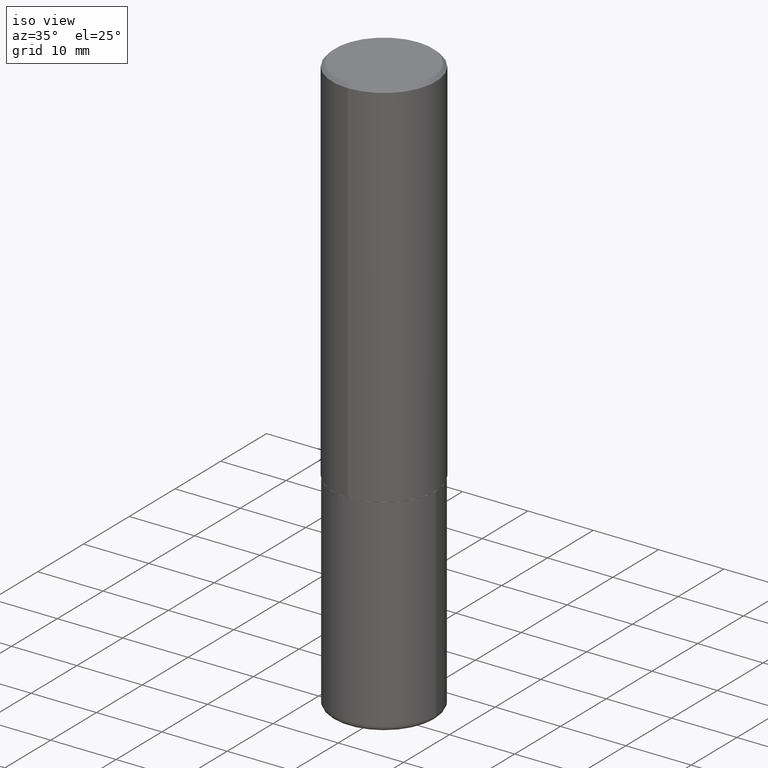
[diagram: clean part render]
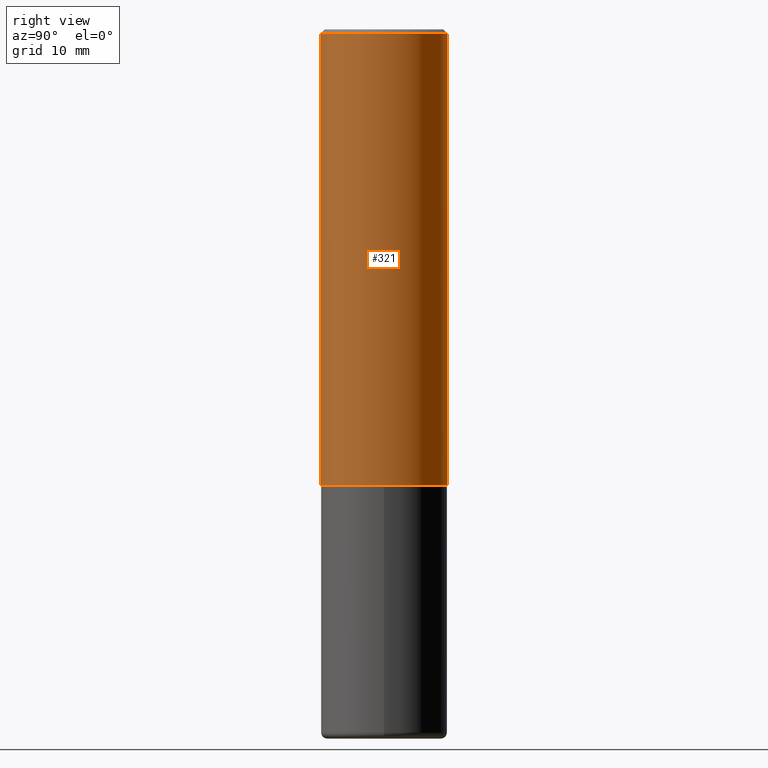
[diagram: tour spotlight — one face highlighted and labeled with its STEP entity id]
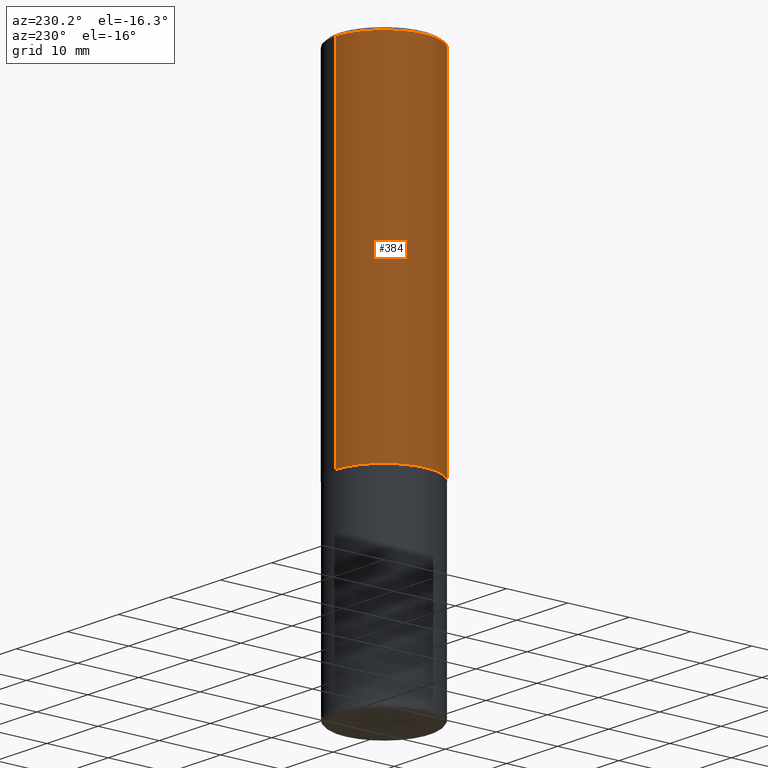
[diagram: tour spotlight — one face highlighted and labeled with its STEP entity id]
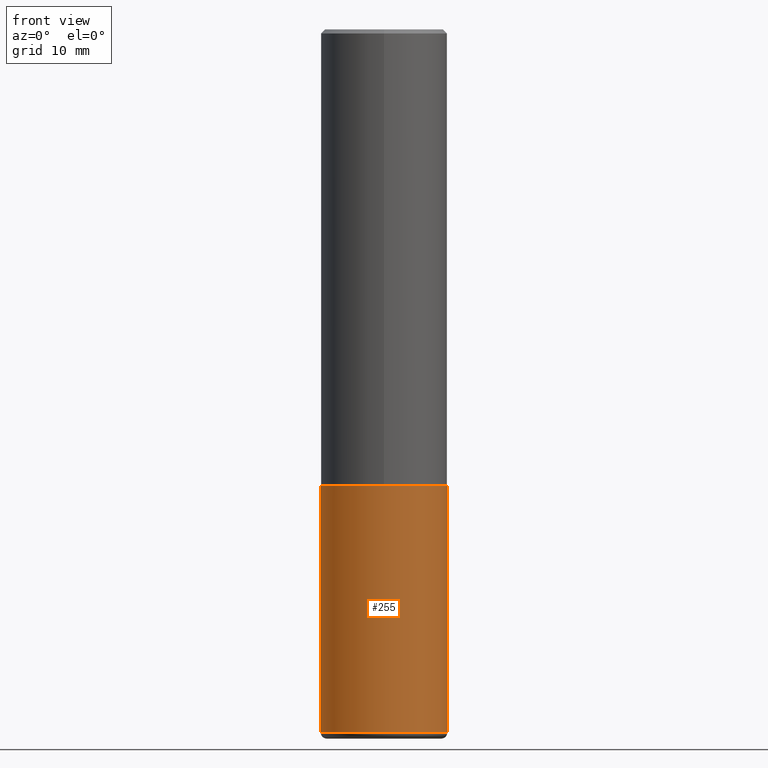
[diagram: tour spotlight — one face highlighted and labeled with its STEP entity id]
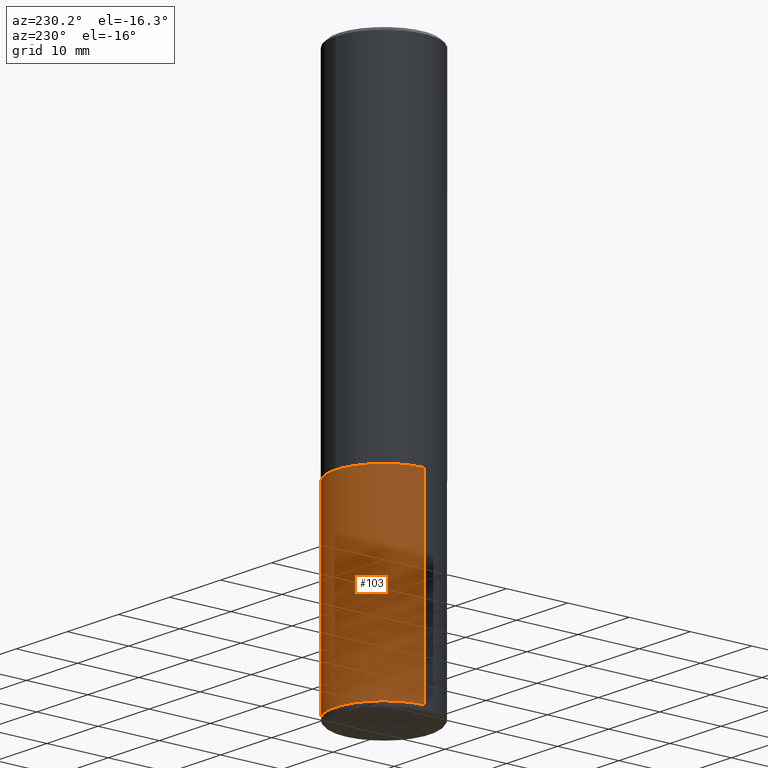
[diagram: tour spotlight — one face highlighted and labeled with its STEP entity id]
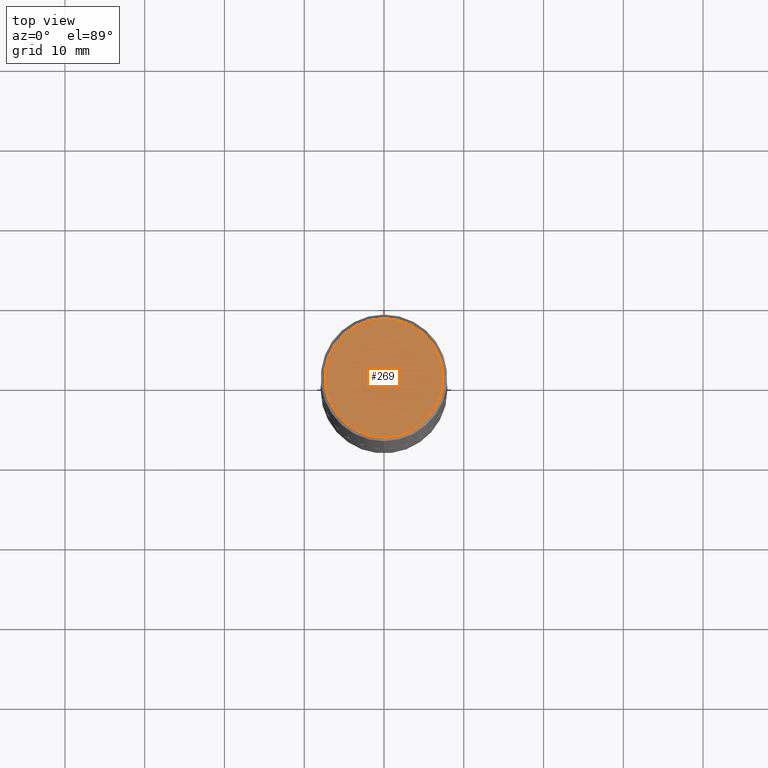
[diagram: tour spotlight — one face highlighted and labeled with its STEP entity id]
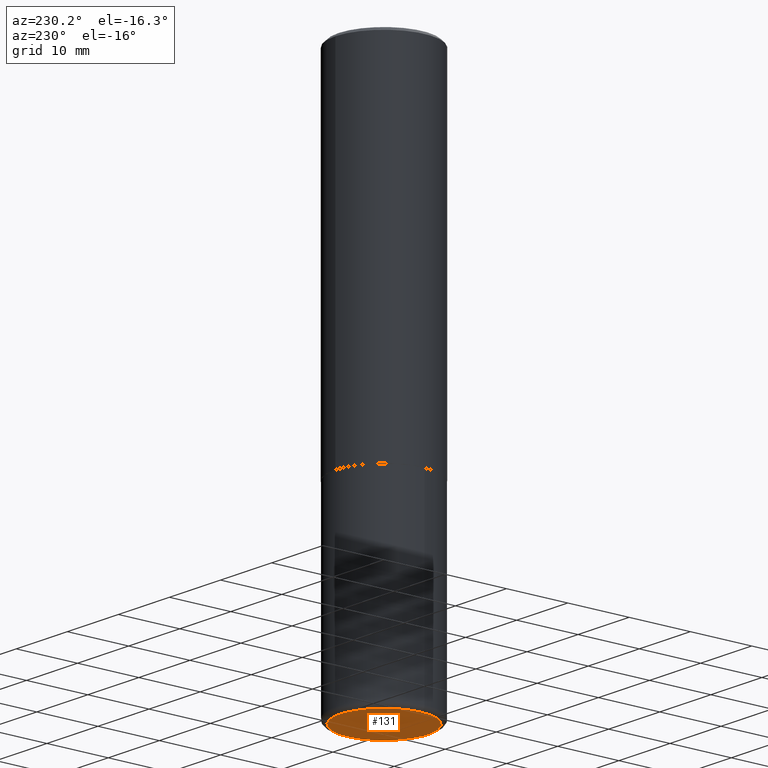
[diagram: tour spotlight — one face highlighted and labeled with its STEP entity id]
A machine part: a face-by-face anatomy tour. The part has 14 B-rep faces; the first image is the clean iso view, then the 6 largest visible faces are spotlighted one at a time (largest first), each with its STEP entity span.

Face 1 — right view, entity #321. In plain terms, the highlighted cylindrical surface (partial cylindrical patch) has radius 7.9375 mm, axis along (-0, 0, 1).
Definition (entity closure, byte-faithful):
#1 = CARTESIAN_POINT ( 'NONE',  ( -2.143905624303602036E-15, -0.3124999999999999445, -0.01999999999999897693 ) ) ;
#12 = VERTEX_POINT ( 'NONE', #168 ) ;
#41 = CIRCLE ( 'NONE', #320, 0.3124999999999998890 ) ;
#59 = CARTESIAN_POINT ( 'NONE',  ( -2.182175836776958741E-15, -0.3125000000000000555, 1.091675675278512284E-15 ) ) ;
#66 = EDGE_CURVE ( 'NONE', #409, #237, #413, .T. ) ;
#78 = ORIENTED_EDGE ( 'NONE', *, *, #66, .F. ) ;
#80 = CARTESIAN_POINT ( 'NONE',  ( -2.182175836776905099E-15, -0.3125000000000081601, -2.248999999999998778 ) ) ;
#81 = CIRCLE ( 'NONE', #313, 0.3125000000000002776 ) ;
#105 = CYLINDRICAL_SURFACE ( 'NONE', #360, 0.3125000000000000555 ) ;
#127 = VERTEX_POINT ( 'NONE', #219 ) ;
#130 = DIRECTION ( 'NONE',  ( -6.982962677686265133E-15, -1.000000000000000000, 3.496765431890258103E-15 ) ) ;
#145 = DIRECTION ( 'NONE',  ( -2.444155435168616212E-29, 3.493362160891238126E-15, 1.000000000000000000 ) ) ;
#163 = DIRECTION ( 'NONE',  ( -2.444155435168616212E-29, 3.493362160891238520E-15, 1.000000000000000000 ) ) ;
#168 = CARTESIAN_POINT ( 'NONE',  ( 2.220446049250341480E-15, 0.3124999999999924505, -2.249000000000000998 ) ) ;
#192 = ORIENTED_EDGE ( 'NONE', *, *, #369, .T. ) ;
#193 = DIRECTION ( 'NONE',  ( -2.444155435168616212E-29, 3.493362160891238520E-15, 1.000000000000000000 ) ) ;
#203 = DIRECTION ( 'NONE',  ( -2.444155435168616212E-29, 3.493362160891238520E-15, 1.000000000000000000 ) ) ;
#219 = CARTESIAN_POINT ( 'NONE',  ( 2.182175836776957558E-15, 0.3124999999999998335, -0.02000000000000116268 ) ) ;
#228 = ORIENTED_EDGE ( 'NONE', *, *, #383, .F. ) ;
#237 = VERTEX_POINT ( 'NONE', #1 ) ;
#273 = FACE_OUTER_BOUND ( 'NONE', #393, .T. ) ;
#283 = DIRECTION ( 'NONE',  ( -2.444155435168616212E-29, 3.493362160891238126E-15, 1.000000000000000000 ) ) ;
#287 = ORIENTED_EDGE ( 'NONE', *, *, #390, .T. ) ;
#295 = CARTESIAN_POINT ( 'NONE',  ( 5.496905573694216767E-29, -7.856571499844395127E-15, -2.248999999999999666 ) ) ;
#312 = CARTESIAN_POINT ( 'NONE',  ( 2.220446049250313081E-15, 0.3125000000000000555, -1.091675675278512284E-15 ) ) ;
#313 = AXIS2_PLACEMENT_3D ( 'NONE', #295, #203, #364 ) ;
#320 = AXIS2_PLACEMENT_3D ( 'NONE', #331, #163, #130 ) ;
#321 = ADVANCED_FACE ( 'NONE', ( #273 ), #105, .T. ) ;
#331 = CARTESIAN_POINT ( 'NONE',  ( 4.888310870337248995E-31, -6.986724321782500903E-17, -0.02000000000000006981 ) ) ;
#348 = VECTOR ( 'NONE', #145, 39.37007874015748143 ) ;
#360 = AXIS2_PLACEMENT_3D ( 'NONE', #371, #193, #398 ) ;
#364 = DIRECTION ( 'NONE',  ( -6.982962677686265922E-15, -1.000000000000000000, 3.496765431890253764E-15 ) ) ;
#365 = VECTOR ( 'NONE', #283, 39.37007874015748143 ) ;
#369 = EDGE_CURVE ( 'NONE', #409, #12, #81, .T. ) ;
#371 = CARTESIAN_POINT ( 'NONE',  ( 0.000000000000000000, 0.000000000000000000, 0.000000000000000000 ) ) ;
#383 = EDGE_CURVE ( 'NONE', #237, #127, #41, .T. ) ;
#390 = EDGE_CURVE ( 'NONE', #12, #127, #411, .T. ) ;
#393 = EDGE_LOOP ( 'NONE', ( #192, #287, #228, #78 ) ) ;
#398 = DIRECTION ( 'NONE',  ( -6.982962677686266711E-15, -1.000000000000000000, 3.493362160891238520E-15 ) ) ;
#409 = VERTEX_POINT ( 'NONE', #80 ) ;
#411 = LINE ( 'NONE', #312, #348 ) ;
#413 = LINE ( 'NONE', #59, #365 ) ;

Face 2 — auxiliary view, entity #384. In plain terms, the highlighted cylindrical surface (partial cylindrical patch) has radius 7.9375 mm, axis along (-0, 0, 1).
Definition (entity closure, byte-faithful):
#1 = CARTESIAN_POINT ( 'NONE',  ( -2.143905624303602036E-15, -0.3124999999999999445, -0.01999999999999897693 ) ) ;
#12 = VERTEX_POINT ( 'NONE', #168 ) ;
#14 = CYLINDRICAL_SURFACE ( 'NONE', #16, 0.3125000000000000555 ) ;
#16 = AXIS2_PLACEMENT_3D ( 'NONE', #133, #143, #279 ) ;
#37 = DIRECTION ( 'NONE',  ( -6.982962677686265922E-15, -1.000000000000000000, 3.496765431890253764E-15 ) ) ;
#59 = CARTESIAN_POINT ( 'NONE',  ( -2.182175836776958741E-15, -0.3125000000000000555, 1.091675675278512284E-15 ) ) ;
#66 = EDGE_CURVE ( 'NONE', #409, #237, #413, .T. ) ;
#70 = CARTESIAN_POINT ( 'NONE',  ( 4.888310870337248995E-31, -6.986724321782500903E-17, -0.02000000000000006981 ) ) ;
#72 = CIRCLE ( 'NONE', #338, 0.3125000000000002776 ) ;
#75 = DIRECTION ( 'NONE',  ( -6.982962677686265133E-15, -1.000000000000000000, 3.496765431890258103E-15 ) ) ;
#80 = CARTESIAN_POINT ( 'NONE',  ( -2.182175836776905099E-15, -0.3125000000000081601, -2.248999999999998778 ) ) ;
#102 = CARTESIAN_POINT ( 'NONE',  ( 5.496905573694216767E-29, -7.856571499844395127E-15, -2.248999999999999666 ) ) ;
#124 = EDGE_LOOP ( 'NONE', ( #160, #161, #318, #292 ) ) ;
#127 = VERTEX_POINT ( 'NONE', #219 ) ;
#133 = CARTESIAN_POINT ( 'NONE',  ( 0.000000000000000000, 0.000000000000000000, 0.000000000000000000 ) ) ;
#143 = DIRECTION ( 'NONE',  ( -2.444155435168616212E-29, 3.493362160891238520E-15, 1.000000000000000000 ) ) ;
#145 = DIRECTION ( 'NONE',  ( -2.444155435168616212E-29, 3.493362160891238126E-15, 1.000000000000000000 ) ) ;
#160 = ORIENTED_EDGE ( 'NONE', *, *, #390, .F. ) ;
#161 = ORIENTED_EDGE ( 'NONE', *, *, #290, .T. ) ;
#165 = DIRECTION ( 'NONE',  ( -2.444155435168616212E-29, 3.493362160891238520E-15, 1.000000000000000000 ) ) ;
#168 = CARTESIAN_POINT ( 'NONE',  ( 2.220446049250341480E-15, 0.3124999999999924505, -2.249000000000000998 ) ) ;
#219 = CARTESIAN_POINT ( 'NONE',  ( 2.182175836776957558E-15, 0.3124999999999998335, -0.02000000000000116268 ) ) ;
#230 = CIRCLE ( 'NONE', #319, 0.3124999999999998890 ) ;
#237 = VERTEX_POINT ( 'NONE', #1 ) ;
#266 = FACE_OUTER_BOUND ( 'NONE', #124, .T. ) ;
#270 = DIRECTION ( 'NONE',  ( -2.444155435168616212E-29, 3.493362160891238520E-15, 1.000000000000000000 ) ) ;
#279 = DIRECTION ( 'NONE',  ( -6.982962677686266711E-15, -1.000000000000000000, 3.493362160891238520E-15 ) ) ;
#283 = DIRECTION ( 'NONE',  ( -2.444155435168616212E-29, 3.493362160891238126E-15, 1.000000000000000000 ) ) ;
#290 = EDGE_CURVE ( 'NONE', #12, #409, #72, .T. ) ;
#292 = ORIENTED_EDGE ( 'NONE', *, *, #298, .F. ) ;
#298 = EDGE_CURVE ( 'NONE', #127, #237, #230, .T. ) ;
#312 = CARTESIAN_POINT ( 'NONE',  ( 2.220446049250313081E-15, 0.3125000000000000555, -1.091675675278512284E-15 ) ) ;
#318 = ORIENTED_EDGE ( 'NONE', *, *, #66, .T. ) ;
#319 = AXIS2_PLACEMENT_3D ( 'NONE', #70, #270, #75 ) ;
#338 = AXIS2_PLACEMENT_3D ( 'NONE', #102, #165, #37 ) ;
#348 = VECTOR ( 'NONE', #145, 39.37007874015748143 ) ;
#365 = VECTOR ( 'NONE', #283, 39.37007874015748143 ) ;
#384 = ADVANCED_FACE ( 'NONE', ( #266 ), #14, .T. ) ;
#390 = EDGE_CURVE ( 'NONE', #12, #127, #411, .T. ) ;
#409 = VERTEX_POINT ( 'NONE', #80 ) ;
#411 = LINE ( 'NONE', #312, #348 ) ;
#413 = LINE ( 'NONE', #59, #365 ) ;

Face 3 — front view, entity #255. In plain terms, the highlighted cylindrical surface (partial cylindrical patch) has radius 7.9375 mm, axis along (-0, 0, 1).
Definition (entity closure, byte-faithful):
#11 = DIRECTION ( 'NONE',  ( -2.445468806185136597E-29, 3.491481338843145583E-15, 1.000000000000000000 ) ) ;
#24 = LINE ( 'NONE', #141, #247 ) ;
#38 = VERTEX_POINT ( 'NONE', #210 ) ;
#47 = EDGE_CURVE ( 'NONE', #52, #232, #24, .T. ) ;
#48 = DIRECTION ( 'NONE',  ( 1.000000000000000000, -6.982962677686269077E-15, 0.000000000000000000 ) ) ;
#52 = VERTEX_POINT ( 'NONE', #281 ) ;
#60 = AXIS2_PLACEMENT_3D ( 'NONE', #73, #199, #48 ) ;
#67 = CIRCLE ( 'NONE', #306, 0.3125000000000000000 ) ;
#73 = CARTESIAN_POINT ( 'NONE',  ( 5.502304813916556222E-29, -7.855833012397076871E-15, -2.249999999999999556 ) ) ;
#88 = CARTESIAN_POINT ( 'NONE',  ( -0.3125000000000000000, 2.220446049250313081E-15, -1.537167215704658232E-29 ) ) ;
#109 = EDGE_LOOP ( 'NONE', ( #137, #359, #225, #169 ) ) ;
#125 = CIRCLE ( 'NONE', #60, 0.3125000000000000000 ) ;
#126 = CARTESIAN_POINT ( 'NONE',  ( 0.000000000000000000, 0.000000000000000000, 0.000000000000000000 ) ) ;
#129 = EDGE_CURVE ( 'NONE', #171, #38, #150, .T. ) ;
#137 = ORIENTED_EDGE ( 'NONE', *, *, #129, .F. ) ;
#141 = CARTESIAN_POINT ( 'NONE',  ( 0.3125000000000000000, -2.182175836776958347E-15, 1.523805242436230075E-29 ) ) ;
#147 = AXIS2_PLACEMENT_3D ( 'NONE', #126, #231, #403 ) ;
#150 = LINE ( 'NONE', #88, #254 ) ;
#169 = ORIENTED_EDGE ( 'NONE', *, *, #375, .F. ) ;
#171 = VERTEX_POINT ( 'NONE', #217 ) ;
#199 = DIRECTION ( 'NONE',  ( -2.445468806185136597E-29, 3.491481338843145583E-15, 1.000000000000000000 ) ) ;
#202 = CARTESIAN_POINT ( 'NONE',  ( 8.485776757462424574E-29, -1.211544024578571439E-14, -3.469999999999999751 ) ) ;
#210 = CARTESIAN_POINT ( 'NONE',  ( -0.3125000000000000000, -7.765190579841083341E-15, -2.249999999999999556 ) ) ;
#217 = CARTESIAN_POINT ( 'NONE',  ( -0.3125000000000001665, -9.894994196535401314E-15, -3.469999999999999751 ) ) ;
#225 = ORIENTED_EDGE ( 'NONE', *, *, #47, .T. ) ;
#231 = DIRECTION ( 'NONE',  ( -2.445468806185136597E-29, 3.491481338843145583E-15, 1.000000000000000000 ) ) ;
#232 = VERTEX_POINT ( 'NONE', #259 ) ;
#247 = VECTOR ( 'NONE', #310, 39.37007874015748143 ) ;
#254 = VECTOR ( 'NONE', #258, 39.37007874015748143 ) ;
#255 = ADVANCED_FACE ( 'NONE', ( #293 ), #363, .T. ) ;
#258 = DIRECTION ( 'NONE',  ( -2.445468806185136877E-29, 3.491481338843145188E-15, 1.000000000000000000 ) ) ;
#259 = CARTESIAN_POINT ( 'NONE',  ( 0.3125000000000000000, -1.003800884917403522E-14, -2.249999999999999556 ) ) ;
#264 = DIRECTION ( 'NONE',  ( 1.000000000000000000, -6.982962677686269077E-15, 0.000000000000000000 ) ) ;
#281 = CARTESIAN_POINT ( 'NONE',  ( 0.3125000000000001665, -1.429761608256267432E-14, -3.469999999999999751 ) ) ;
#293 = FACE_OUTER_BOUND ( 'NONE', #109, .T. ) ;
#306 = AXIS2_PLACEMENT_3D ( 'NONE', #202, #11, #264 ) ;
#310 = DIRECTION ( 'NONE',  ( -2.445468806185136877E-29, 3.491481338843145188E-15, 1.000000000000000000 ) ) ;
#311 = EDGE_CURVE ( 'NONE', #171, #52, #67, .T. ) ;
#359 = ORIENTED_EDGE ( 'NONE', *, *, #311, .T. ) ;
#363 = CYLINDRICAL_SURFACE ( 'NONE', #147, 0.3125000000000000000 ) ;
#375 = EDGE_CURVE ( 'NONE', #38, #232, #125, .T. ) ;
#403 = DIRECTION ( 'NONE',  ( 1.000000000000000000, -6.982962677686266711E-15, 4.876176775795936353E-29 ) ) ;

Face 4 — auxiliary view, entity #103. In plain terms, the highlighted cylindrical surface (partial cylindrical patch) has radius 7.9375 mm, axis along (-0, 0, 1).
Definition (entity closure, byte-faithful):
#19 = CYLINDRICAL_SURFACE ( 'NONE', #346, 0.3125000000000000000 ) ;
#24 = LINE ( 'NONE', #141, #247 ) ;
#38 = VERTEX_POINT ( 'NONE', #210 ) ;
#47 = EDGE_CURVE ( 'NONE', #52, #232, #24, .T. ) ;
#52 = VERTEX_POINT ( 'NONE', #281 ) ;
#57 = CARTESIAN_POINT ( 'NONE',  ( 5.502304813916556222E-29, -7.855833012397076871E-15, -2.249999999999999556 ) ) ;
#88 = CARTESIAN_POINT ( 'NONE',  ( -0.3125000000000000000, 2.220446049250313081E-15, -1.537167215704658232E-29 ) ) ;
#90 = CIRCLE ( 'NONE', #185, 0.3125000000000000000 ) ;
#95 = AXIS2_PLACEMENT_3D ( 'NONE', #385, #285, #358 ) ;
#98 = ORIENTED_EDGE ( 'NONE', *, *, #47, .F. ) ;
#101 = EDGE_CURVE ( 'NONE', #232, #38, #90, .T. ) ;
#103 = ADVANCED_FACE ( 'NONE', ( #350 ), #19, .T. ) ;
#108 = CARTESIAN_POINT ( 'NONE',  ( 0.000000000000000000, 0.000000000000000000, 0.000000000000000000 ) ) ;
#112 = DIRECTION ( 'NONE',  ( 1.000000000000000000, -6.982962677686269077E-15, 0.000000000000000000 ) ) ;
#115 = DIRECTION ( 'NONE',  ( -2.445468806185136597E-29, 3.491481338843145583E-15, 1.000000000000000000 ) ) ;
#129 = EDGE_CURVE ( 'NONE', #171, #38, #150, .T. ) ;
#135 = ORIENTED_EDGE ( 'NONE', *, *, #157, .T. ) ;
#141 = CARTESIAN_POINT ( 'NONE',  ( 0.3125000000000000000, -2.182175836776958347E-15, 1.523805242436230075E-29 ) ) ;
#150 = LINE ( 'NONE', #88, #254 ) ;
#157 = EDGE_CURVE ( 'NONE', #52, #171, #354, .T. ) ;
#171 = VERTEX_POINT ( 'NONE', #217 ) ;
#185 = AXIS2_PLACEMENT_3D ( 'NONE', #57, #415, #112 ) ;
#210 = CARTESIAN_POINT ( 'NONE',  ( -0.3125000000000000000, -7.765190579841083341E-15, -2.249999999999999556 ) ) ;
#217 = CARTESIAN_POINT ( 'NONE',  ( -0.3125000000000001665, -9.894994196535401314E-15, -3.469999999999999751 ) ) ;
#232 = VERTEX_POINT ( 'NONE', #259 ) ;
#247 = VECTOR ( 'NONE', #310, 39.37007874015748143 ) ;
#254 = VECTOR ( 'NONE', #258, 39.37007874015748143 ) ;
#258 = DIRECTION ( 'NONE',  ( -2.445468806185136877E-29, 3.491481338843145188E-15, 1.000000000000000000 ) ) ;
#259 = CARTESIAN_POINT ( 'NONE',  ( 0.3125000000000000000, -1.003800884917403522E-14, -2.249999999999999556 ) ) ;
#271 = ORIENTED_EDGE ( 'NONE', *, *, #101, .F. ) ;
#281 = CARTESIAN_POINT ( 'NONE',  ( 0.3125000000000001665, -1.429761608256267432E-14, -3.469999999999999751 ) ) ;
#285 = DIRECTION ( 'NONE',  ( -2.445468806185136597E-29, 3.491481338843145583E-15, 1.000000000000000000 ) ) ;
#310 = DIRECTION ( 'NONE',  ( -2.445468806185136877E-29, 3.491481338843145188E-15, 1.000000000000000000 ) ) ;
#346 = AXIS2_PLACEMENT_3D ( 'NONE', #108, #115, #377 ) ;
#350 = FACE_OUTER_BOUND ( 'NONE', #401, .T. ) ;
#354 = CIRCLE ( 'NONE', #95, 0.3125000000000000000 ) ;
#358 = DIRECTION ( 'NONE',  ( 1.000000000000000000, -6.982962677686269077E-15, 0.000000000000000000 ) ) ;
#377 = DIRECTION ( 'NONE',  ( 1.000000000000000000, -6.982962677686266711E-15, 4.876176775795936353E-29 ) ) ;
#385 = CARTESIAN_POINT ( 'NONE',  ( 8.485776757462424574E-29, -1.211544024578571439E-14, -3.469999999999999751 ) ) ;
#395 = ORIENTED_EDGE ( 'NONE', *, *, #129, .T. ) ;
#401 = EDGE_LOOP ( 'NONE', ( #135, #395, #271, #98 ) ) ;
#415 = DIRECTION ( 'NONE',  ( -2.445468806185136597E-29, 3.491481338843145583E-15, 1.000000000000000000 ) ) ;

Face 5 — top view, entity #269. In plain terms, the highlighted planar face has unit normal (0, -0, -1).
Definition (entity closure, byte-faithful):
#15 = AXIS2_PLACEMENT_3D ( 'NONE', #326, #368, #76 ) ;
#20 = EDGE_LOOP ( 'NONE', ( #229, #330 ) ) ;
#29 = DIRECTION ( 'NONE',  ( -2.444155435168616212E-29, 3.493362160891238520E-15, 1.000000000000000000 ) ) ;
#40 = CARTESIAN_POINT ( 'NONE',  ( -3.247647768543791356E-45, 4.641771003304080589E-31, 1.328740276421799924E-16 ) ) ;
#45 = DIRECTION ( 'NONE',  ( -6.982962677686265133E-15, -1.000000000000000000, 3.493362160891238126E-15 ) ) ;
#46 = VERTEX_POINT ( 'NONE', #308 ) ;
#76 = DIRECTION ( 'NONE',  ( 6.982962677686265922E-15, 1.000000000000000000, -3.493362160891238126E-15 ) ) ;
#93 = CARTESIAN_POINT ( 'NONE',  ( -3.247647768543791356E-45, 4.641771003304080589E-31, 1.328740276421799924E-16 ) ) ;
#99 = CARTESIAN_POINT ( 'NONE',  ( -2.075300644325886310E-15, -0.2924999999999997047, 1.154682459702866479E-15 ) ) ;
#116 = DIRECTION ( 'NONE',  ( -6.982962677686265133E-15, -1.000000000000000000, 3.493362160891238126E-15 ) ) ;
#139 = CIRCLE ( 'NONE', #297, 0.2924999999999997047 ) ;
#164 = EDGE_CURVE ( 'NONE', #46, #356, #139, .T. ) ;
#190 = FACE_OUTER_BOUND ( 'NONE', #20, .T. ) ;
#229 = ORIENTED_EDGE ( 'NONE', *, *, #164, .T. ) ;
#269 = ADVANCED_FACE ( 'NONE', ( #190 ), #394, .F. ) ;
#288 = CIRCLE ( 'NONE', #391, 0.2924999999999997047 ) ;
#297 = AXIS2_PLACEMENT_3D ( 'NONE', #93, #29, #116 ) ;
#299 = DIRECTION ( 'NONE',  ( -2.444155435168616212E-29, 3.493362160891238520E-15, 1.000000000000000000 ) ) ;
#308 = CARTESIAN_POINT ( 'NONE',  ( 2.112346210000094260E-15, 0.2924999999999997047, -8.889344044185063951E-16 ) ) ;
#324 = EDGE_CURVE ( 'NONE', #356, #46, #288, .T. ) ;
#326 = CARTESIAN_POINT ( 'NONE',  ( 2.042516583223230567E-15, 0.2924999999999997047, -9.553714182395964653E-16 ) ) ;
#330 = ORIENTED_EDGE ( 'NONE', *, *, #324, .T. ) ;
#356 = VERTEX_POINT ( 'NONE', #99 ) ;
#368 = DIRECTION ( 'NONE',  ( 2.444155435168616212E-29, -3.493362160891238126E-15, -1.000000000000000000 ) ) ;
#391 = AXIS2_PLACEMENT_3D ( 'NONE', #40, #299, #45 ) ;
#394 = PLANE ( 'NONE',  #15 ) ;

Face 6 — auxiliary view, entity #131. In plain terms, the highlighted planar face has unit normal (0, -0, -1).
Definition (entity closure, byte-faithful):
#30 = CARTESIAN_POINT ( 'NONE',  ( 3.832247084795320099E-29, -1.898936555520759148E-14, -3.500000000000000444 ) ) ;
#42 = EDGE_CURVE ( 'NONE', #387, #43, #328, .T. ) ;
#43 = VERTEX_POINT ( 'NONE', #353 ) ;
#107 = AXIS2_PLACEMENT_3D ( 'NONE', #30, #189, #388 ) ;
#131 = ADVANCED_FACE ( 'NONE', ( #152 ), #418, .T. ) ;
#146 = CARTESIAN_POINT ( 'NONE',  ( 8.559140821647978089E-29, -1.222018468595101092E-14, -3.500000000000000444 ) ) ;
#151 = DIRECTION ( 'NONE',  ( -2.445468806185136597E-29, 3.491481338843145583E-15, 1.000000000000000000 ) ) ;
#152 = FACE_OUTER_BOUND ( 'NONE', #397, .T. ) ;
#189 = DIRECTION ( 'NONE',  ( 2.438088387897960049E-29, -3.491481338843145188E-15, -1.000000000000000000 ) ) ;
#212 = EDGE_CURVE ( 'NONE', #43, #387, #222, .T. ) ;
#222 = CIRCLE ( 'NONE', #381, 0.2825000000000000289 ) ;
#242 = DIRECTION ( 'NONE',  ( 1.000000000000000000, -6.982962677686269077E-15, 0.000000000000000000 ) ) ;
#248 = CARTESIAN_POINT ( 'NONE',  ( 0.2825000000000000289, -1.419287164239738095E-14, -3.500000000000000444 ) ) ;
#252 = CARTESIAN_POINT ( 'NONE',  ( 8.559140821647978089E-29, -1.222018468595101092E-14, -3.500000000000000444 ) ) ;
#291 = AXIS2_PLACEMENT_3D ( 'NONE', #146, #345, #242 ) ;
#315 = DIRECTION ( 'NONE',  ( 1.000000000000000000, -6.982962677686269077E-15, 0.000000000000000000 ) ) ;
#328 = CIRCLE ( 'NONE', #291, 0.2825000000000000289 ) ;
#335 = ORIENTED_EDGE ( 'NONE', *, *, #212, .F. ) ;
#337 = ORIENTED_EDGE ( 'NONE', *, *, #42, .F. ) ;
#345 = DIRECTION ( 'NONE',  ( -2.445468806185136597E-29, 3.491481338843145583E-15, 1.000000000000000000 ) ) ;
#353 = CARTESIAN_POINT ( 'NONE',  ( -0.2825000000000000289, -1.005394782698206391E-14, -3.500000000000000444 ) ) ;
#381 = AXIS2_PLACEMENT_3D ( 'NONE', #252, #151, #315 ) ;
#387 = VERTEX_POINT ( 'NONE', #248 ) ;
#388 = DIRECTION ( 'NONE',  ( -1.000000000000000000, 6.982962677686265922E-15, -4.876176775795935793E-29 ) ) ;
#397 = EDGE_LOOP ( 'NONE', ( #337, #335 ) ) ;
#418 = PLANE ( 'NONE',  #107 ) ;